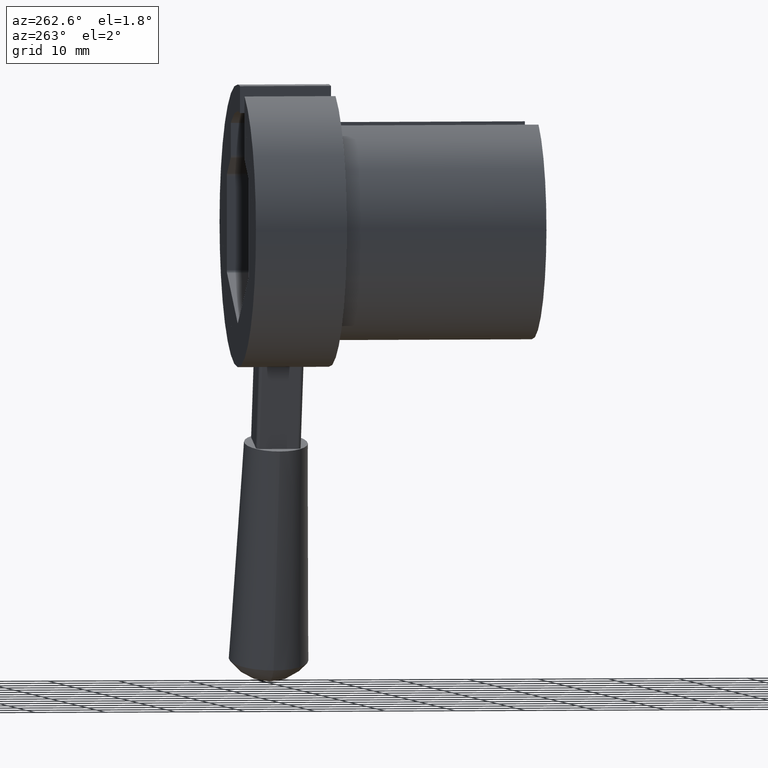
[diagram: clean part render]
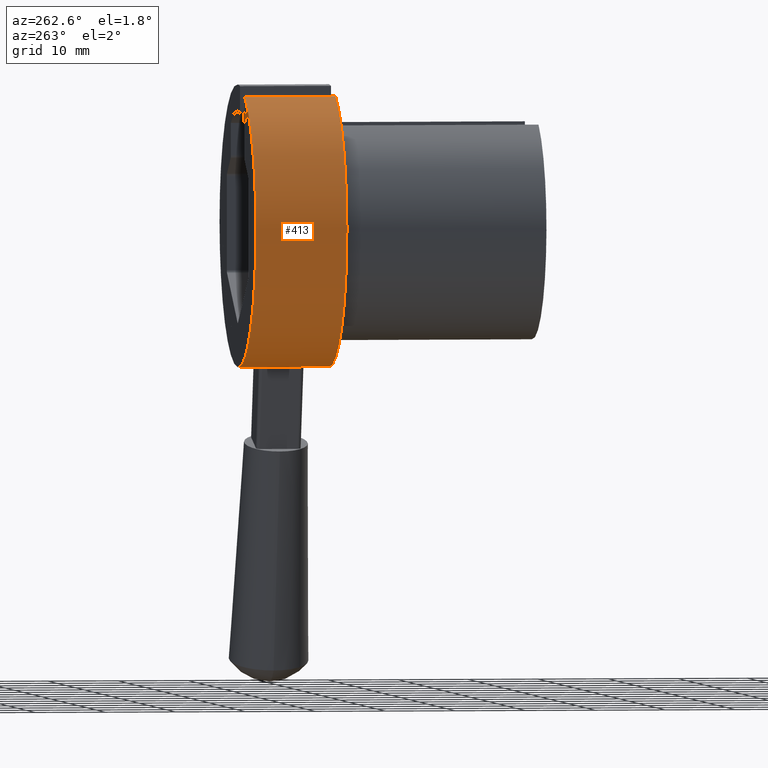
[diagram: same view with one face highlighted and labeled with its STEP entity id]
A machine part, auxiliary view. The second image highlights one B-rep face of the part: STEP entity #413.
In plain terms, the highlighted cylindrical surface (partial cylindrical patch) has radius 20.03 mm, axis along (0, 1, 0).
Its self-contained STEP definition (entity closure, byte-faithful):
#177 = VERTEX_POINT ( 'NONE', #788 ) ;
#230 = EDGE_CURVE ( 'NONE', #177, #231, #876, .T. ) ;
#231 = VERTEX_POINT ( 'NONE', #872 ) ;
#360 = VERTEX_POINT ( 'NONE', #946 ) ;
#362 = EDGE_CURVE ( 'NONE', #363, #360, #945, .T. ) ;
#363 = VERTEX_POINT ( 'NONE', #941 ) ;
#413 = ADVANCED_FACE ( 'NONE', ( #1336 ), #1335, .T. ) ;
#414 = EDGE_LOOP ( 'NONE', ( #415, #416, #418, #419 ) ) ;
#415 = ORIENTED_EDGE ( 'NONE', *, *, #230, .F. ) ;
#416 = ORIENTED_EDGE ( 'NONE', *, *, #417, .T. ) ;
#417 = EDGE_CURVE ( 'NONE', #177, #363, #1329, .T. ) ;
#418 = ORIENTED_EDGE ( 'NONE', *, *, #362, .T. ) ;
#419 = ORIENTED_EDGE ( 'NONE', *, *, #420, .F. ) ;
#420 = EDGE_CURVE ( 'NONE', #231, #360, #1325, .T. ) ;
#788 = CARTESIAN_POINT ( 'NONE',  ( 2.452967538692148000E-015, 28.99900000000000200, -20.02999999999999800 ) ) ;
#872 = CARTESIAN_POINT ( 'NONE',  ( 2.452967538692148000E-015, 41.99900000000000200, -20.02999999999999800 ) ) ;
#873 = DIRECTION ( 'NONE',  ( 0.0000000000000000000, 1.000000000000000000, 0.0000000000000000000 ) ) ;
#874 = VECTOR ( 'NONE', #873, 1000.000000000000000 ) ;
#875 = CARTESIAN_POINT ( 'NONE',  ( 2.452967538692148000E-015, 28.99900000000000200, -20.02999999999999800 ) ) ;
#876 = LINE ( 'NONE', #875, #874 ) ;
#941 = CARTESIAN_POINT ( 'NONE',  ( -7.500000000000014200, 28.99900000000000200, 18.57285384640711700 ) ) ;
#942 = DIRECTION ( 'NONE',  ( 0.0000000000000000000, 1.000000000000000000, 0.0000000000000000000 ) ) ;
#943 = VECTOR ( 'NONE', #942, 1000.000000000000000 ) ;
#944 = CARTESIAN_POINT ( 'NONE',  ( -7.500000000000014200, 28.99900000000000200, 18.57285384640711700 ) ) ;
#945 = LINE ( 'NONE', #944, #943 ) ;
#946 = CARTESIAN_POINT ( 'NONE',  ( -7.500000000000014200, 41.99900000000000200, 18.57285384640711700 ) ) ;
#1321 = DIRECTION ( 'NONE',  ( 0.0000000000000000000, 0.0000000000000000000, 1.000000000000000000 ) ) ;
#1322 = DIRECTION ( 'NONE',  ( 0.0000000000000000000, 1.000000000000000000, 0.0000000000000000000 ) ) ;
#1323 = CARTESIAN_POINT ( 'NONE',  ( 0.0000000000000000000, 41.99900000000000200, 0.0000000000000000000 ) ) ;
#1324 = AXIS2_PLACEMENT_3D ( 'NONE', #1323, #1322, #1321 ) ;
#1325 = CIRCLE ( 'NONE', #1324, 20.02999999999999800 ) ;
#1326 = DIRECTION ( 'NONE',  ( 0.0000000000000000000, 0.0000000000000000000, 1.000000000000000000 ) ) ;
#1327 = DIRECTION ( 'NONE',  ( 0.0000000000000000000, 1.000000000000000000, 0.0000000000000000000 ) ) ;
#1328 = AXIS2_PLACEMENT_3D ( 'NONE', #1334, #1327, #1326 ) ;
#1329 = CIRCLE ( 'NONE', #1328, 20.02999999999999800 ) ;
#1330 = DIRECTION ( 'NONE',  ( 0.0000000000000000000, 0.0000000000000000000, 1.000000000000000000 ) ) ;
#1331 = DIRECTION ( 'NONE',  ( 0.0000000000000000000, 1.000000000000000000, 0.0000000000000000000 ) ) ;
#1332 = CARTESIAN_POINT ( 'NONE',  ( 0.0000000000000000000, 28.99900000000000200, 0.0000000000000000000 ) ) ;
#1333 = AXIS2_PLACEMENT_3D ( 'NONE', #1332, #1331, #1330 ) ;
#1334 = CARTESIAN_POINT ( 'NONE',  ( 0.0000000000000000000, 28.99900000000000200, 0.0000000000000000000 ) ) ;
#1335 = CYLINDRICAL_SURFACE ( 'NONE', #1333, 20.02999999999999800 ) ;
#1336 = FACE_OUTER_BOUND ( 'NONE', #414, .T. ) ;